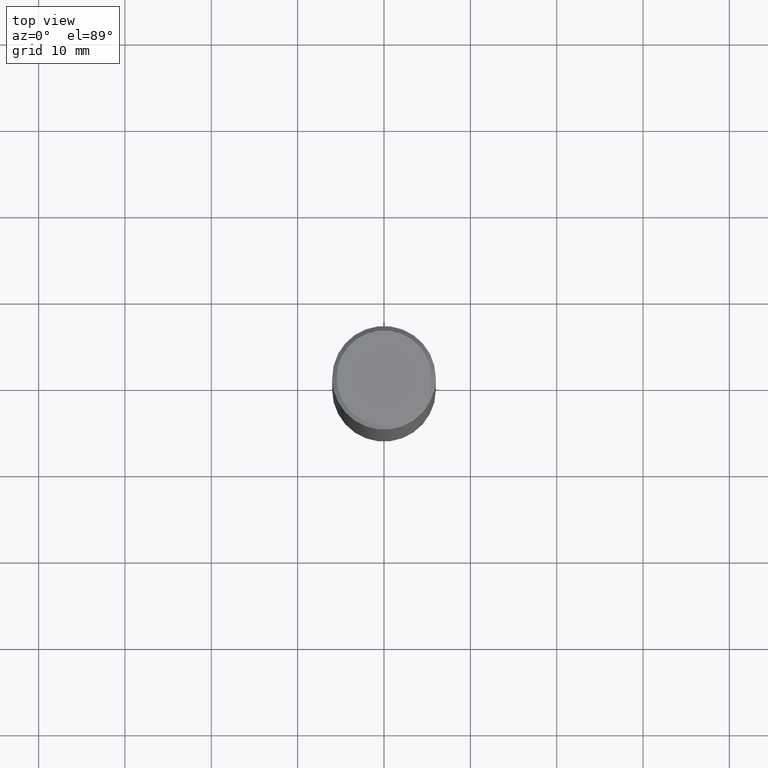
[diagram: clean part render]
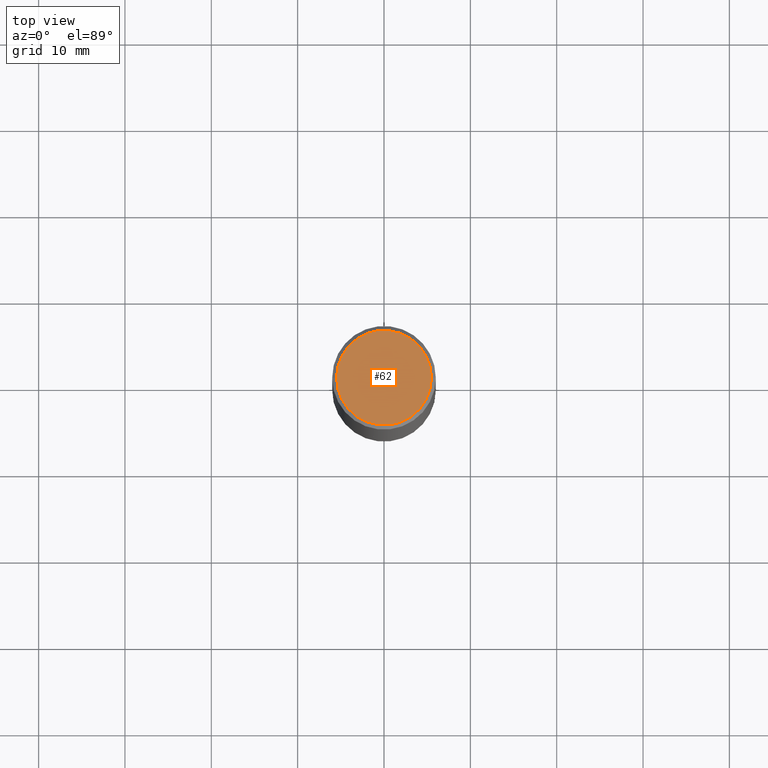
[diagram: same view with one face highlighted and labeled with its STEP entity id]
A machine part, top view. The second image highlights one B-rep face of the part: STEP entity #62.
In plain terms, the highlighted planar face has unit normal (0, -0, -1).
Its self-contained STEP definition (entity closure, byte-faithful):
#15 = DIRECTION ( 'NONE',  ( -1.000000000000000000, 6.982962677686265922E-15, -4.876176775795935793E-29 ) ) ;
#36 = CIRCLE ( 'NONE', #272, 0.2161999999999999478 ) ;
#40 = CARTESIAN_POINT ( 'NONE',  ( -0.2161999999999999478, 1.544631344304201775E-15, 2.987958743069220160E-17 ) ) ;
#49 = DIRECTION ( 'NONE',  ( 2.438088387897960049E-29, -3.491481338843145188E-15, -1.000000000000000000 ) ) ;
#62 = ADVANCED_FACE ( 'NONE', ( #108 ), #241, .F. ) ;
#73 = ORIENTED_EDGE ( 'NONE', *, *, #110, .T. ) ;
#79 = CARTESIAN_POINT ( 'NONE',  ( -7.306959900346538153E-46, 1.043240219266313067E-31, 2.987958743070287587E-17 ) ) ;
#108 = FACE_OUTER_BOUND ( 'NONE', #187, .T. ) ;
#110 = EDGE_CURVE ( 'NONE', #395, #230, #161, .T. ) ;
#113 = DIRECTION ( 'NONE',  ( -2.445468806185136597E-29, 3.491481338843145583E-15, 1.000000000000000000 ) ) ;
#117 = CARTESIAN_POINT ( 'NONE',  ( 0.2161999999999999478, -1.586759460484351396E-15, 2.987958743071370422E-17 ) ) ;
#135 = AXIS2_PLACEMENT_3D ( 'NONE', #210, #362, #208 ) ;
#161 = CIRCLE ( 'NONE', #135, 0.2161999999999999478 ) ;
#164 = ORIENTED_EDGE ( 'NONE', *, *, #181, .T. ) ;
#181 = EDGE_CURVE ( 'NONE', #230, #395, #36, .T. ) ;
#187 = EDGE_LOOP ( 'NONE', ( #73, #164 ) ) ;
#208 = DIRECTION ( 'NONE',  ( 1.000000000000000000, -6.982962677686266711E-15, 4.876655451117826644E-29 ) ) ;
#210 = CARTESIAN_POINT ( 'NONE',  ( -7.306959900346538153E-46, 1.043240219266313067E-31, 2.987958743070287587E-17 ) ) ;
#229 = AXIS2_PLACEMENT_3D ( 'NONE', #367, #49, #15 ) ;
#230 = VERTEX_POINT ( 'NONE', #117 ) ;
#241 = PLANE ( 'NONE',  #229 ) ;
#272 = AXIS2_PLACEMENT_3D ( 'NONE', #79, #113, #369 ) ;
#362 = DIRECTION ( 'NONE',  ( -2.445468806185136597E-29, 3.491481338843145583E-15, 1.000000000000000000 ) ) ;
#367 = CARTESIAN_POINT ( 'NONE',  ( 1.509716530915770323E-15, 0.2161999999999999478, -7.399184717425363306E-16 ) ) ;
#369 = DIRECTION ( 'NONE',  ( 1.000000000000000000, -6.982962677686266711E-15, 4.876655451117826644E-29 ) ) ;
#395 = VERTEX_POINT ( 'NONE', #40 ) ;